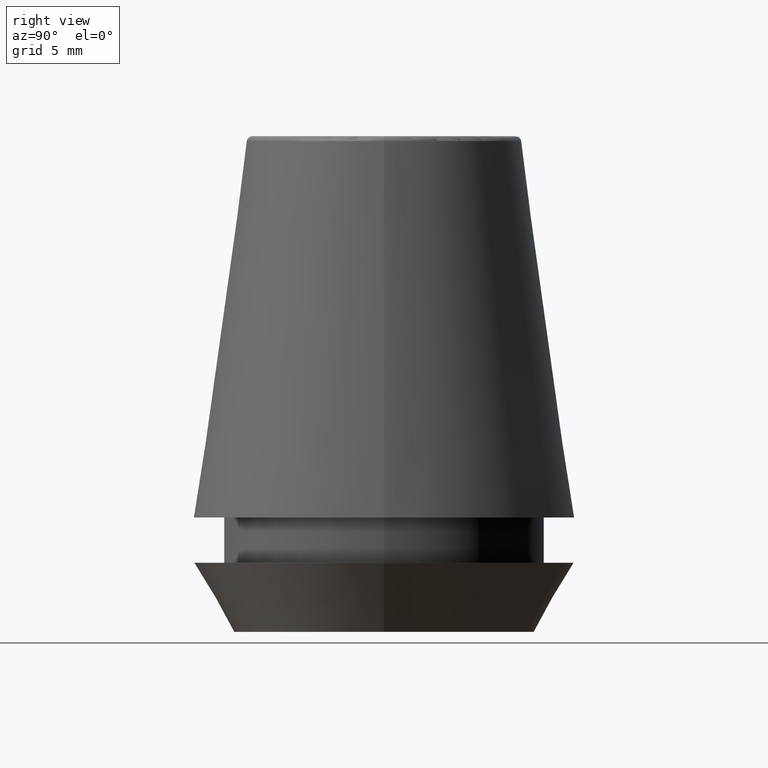
[diagram: clean part render]
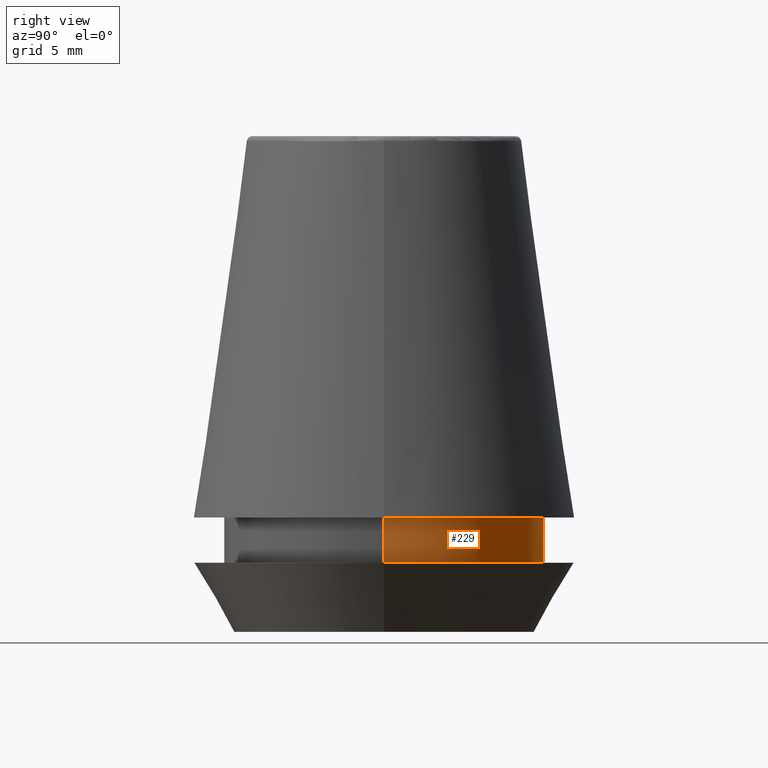
[diagram: same view with one face highlighted and labeled with its STEP entity id]
A machine part, right view. The second image highlights one B-rep face of the part: STEP entity #229.
In plain terms, the highlighted cylindrical surface (partial cylindrical patch) has radius 11 mm, axis along (-0, -0, 1).
Its self-contained STEP definition (entity closure, byte-faithful):
#4 = DIRECTION ( 'NONE',  ( 1.000000000000000000, 0.0000000000000000000, 0.0000000000000000000 ) ) ;
#24 = CARTESIAN_POINT ( 'NONE',  ( -11.00000000000000000, 1.347111479062088400E-015, 101.8074564848000400 ) ) ;
#39 = EDGE_CURVE ( 'NONE', #247, #370, #96, .T. ) ;
#45 = CARTESIAN_POINT ( 'NONE',  ( 0.0000000000000000000, 0.0000000000000000000, 4.742050807568884500 ) ) ;
#47 = CARTESIAN_POINT ( 'NONE',  ( -11.00000000000000000, 1.347111479062088400E-015, 7.842050807568890400 ) ) ;
#55 = DIRECTION ( 'NONE',  ( -0.0000000000000000000, -0.0000000000000000000, 1.000000000000000000 ) ) ;
#68 = VERTEX_POINT ( 'NONE', #47 ) ;
#77 = DIRECTION ( 'NONE',  ( 1.000000000000000000, 0.0000000000000000000, 0.0000000000000000000 ) ) ;
#80 = LINE ( 'NONE', #24, #142 ) ;
#87 = ORIENTED_EDGE ( 'NONE', *, *, #296, .F. ) ;
#90 = CIRCLE ( 'NONE', #347, 11.00000000000000000 ) ;
#96 = LINE ( 'NONE', #167, #311 ) ;
#100 = CIRCLE ( 'NONE', #113, 11.00000000000000000 ) ;
#113 = AXIS2_PLACEMENT_3D ( 'NONE', #355, #207, #135 ) ;
#120 = CARTESIAN_POINT ( 'NONE',  ( 11.00000000000000000, 0.0000000000000000000, 7.842050807568890400 ) ) ;
#123 = FACE_OUTER_BOUND ( 'NONE', #240, .T. ) ;
#128 = CARTESIAN_POINT ( 'NONE',  ( -11.00000000000000000, 1.347111479062088400E-015, 4.742050807568884500 ) ) ;
#135 = DIRECTION ( 'NONE',  ( 1.000000000000000000, 0.0000000000000000000, 0.0000000000000000000 ) ) ;
#142 = VECTOR ( 'NONE', #162, 1000.000000000000000 ) ;
#162 = DIRECTION ( 'NONE',  ( -0.0000000000000000000, -0.0000000000000000000, 1.000000000000000000 ) ) ;
#166 = ORIENTED_EDGE ( 'NONE', *, *, #39, .F. ) ;
#167 = CARTESIAN_POINT ( 'NONE',  ( 11.00000000000000000, 0.0000000000000000000, 101.8074564848000400 ) ) ;
#174 = VERTEX_POINT ( 'NONE', #128 ) ;
#184 = DIRECTION ( 'NONE',  ( -0.0000000000000000000, -0.0000000000000000000, 1.000000000000000000 ) ) ;
#195 = ORIENTED_EDGE ( 'NONE', *, *, #317, .T. ) ;
#207 = DIRECTION ( 'NONE',  ( -0.0000000000000000000, -0.0000000000000000000, 1.000000000000000000 ) ) ;
#229 = ADVANCED_FACE ( 'NONE', ( #123 ), #254, .T. ) ;
#236 = CARTESIAN_POINT ( 'NONE',  ( 0.0000000000000000000, 0.0000000000000000000, 101.8074564848000400 ) ) ;
#240 = EDGE_LOOP ( 'NONE', ( #195, #299, #87, #166 ) ) ;
#245 = AXIS2_PLACEMENT_3D ( 'NONE', #236, #184, #4 ) ;
#247 = VERTEX_POINT ( 'NONE', #358 ) ;
#254 = CYLINDRICAL_SURFACE ( 'NONE', #245, 11.00000000000000000 ) ;
#267 = DIRECTION ( 'NONE',  ( -0.0000000000000000000, -0.0000000000000000000, 1.000000000000000000 ) ) ;
#296 = EDGE_CURVE ( 'NONE', #370, #68, #100, .T. ) ;
#299 = ORIENTED_EDGE ( 'NONE', *, *, #357, .T. ) ;
#311 = VECTOR ( 'NONE', #267, 1000.000000000000000 ) ;
#317 = EDGE_CURVE ( 'NONE', #247, #174, #90, .T. ) ;
#347 = AXIS2_PLACEMENT_3D ( 'NONE', #45, #55, #77 ) ;
#355 = CARTESIAN_POINT ( 'NONE',  ( 0.0000000000000000000, 0.0000000000000000000, 7.842050807568890400 ) ) ;
#357 = EDGE_CURVE ( 'NONE', #174, #68, #80, .T. ) ;
#358 = CARTESIAN_POINT ( 'NONE',  ( 11.00000000000000000, 0.0000000000000000000, 4.742050807568884500 ) ) ;
#370 = VERTEX_POINT ( 'NONE', #120 ) ;